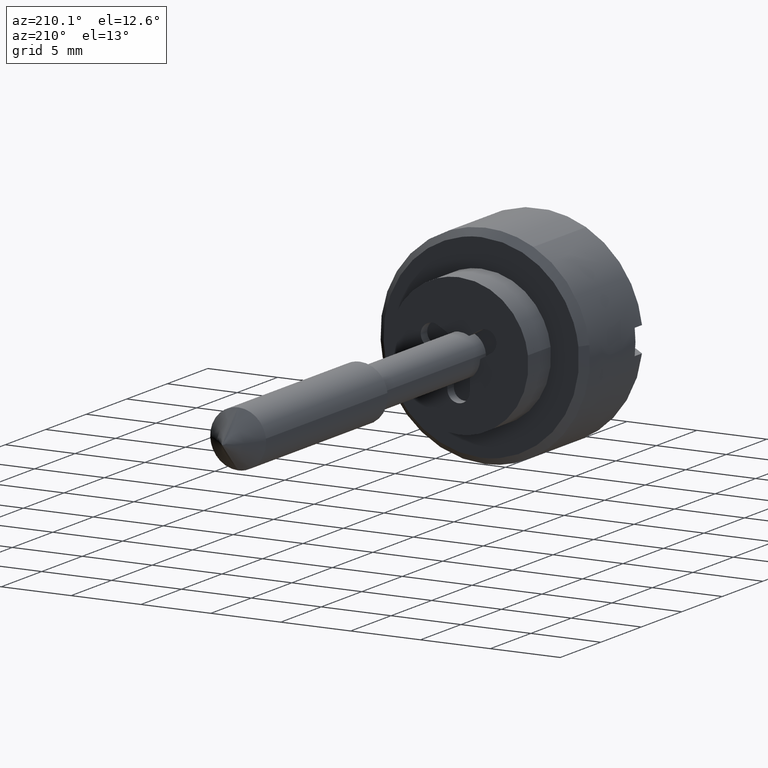
[diagram: clean part render]
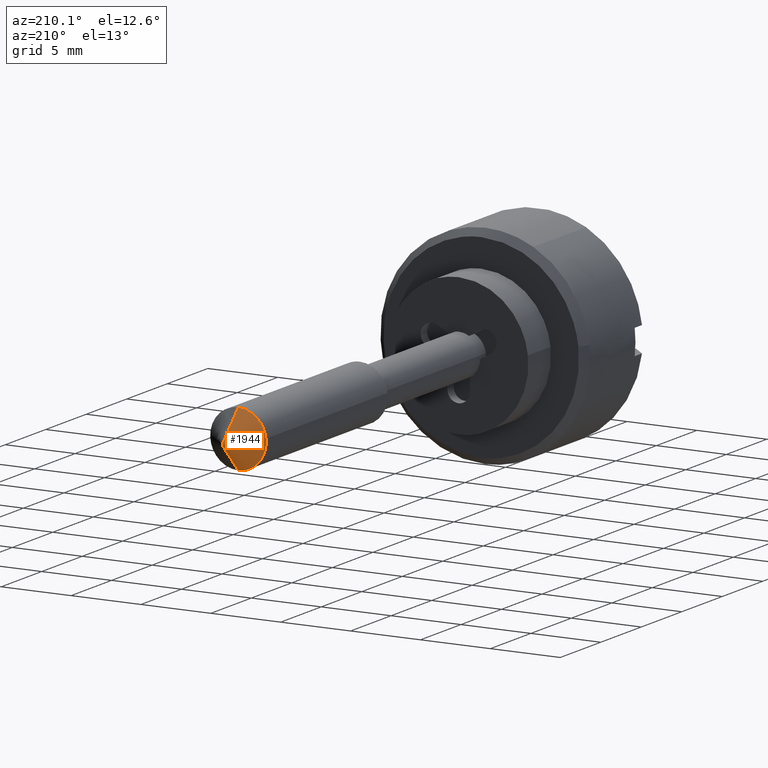
[diagram: same view with one face highlighted and labeled with its STEP entity id]
A machine part, auxiliary view. The second image highlights one B-rep face of the part: STEP entity #1944.
In plain terms, the highlighted face is a freeform B-spline surface patch.
Its self-contained STEP definition (entity closure, byte-faithful):
#859=CARTESIAN_POINT('',(37.999899999999997,1.986019052726245,0.236068469322671));
#860=VERTEX_POINT('',#859);
#861=CARTESIAN_POINT('',(37.999899999999997,0.0,-2.0));
#862=VERTEX_POINT('',#861);
#863=CARTESIAN_POINT('',(37.999900000000004,1.986019052726245,0.236068469322671));
#864=CARTESIAN_POINT('',(37.999900000000004,2.000000000000000,0.118448239313071));
#865=CARTESIAN_POINT('',(37.999899999999997,2.0,0.0));
#866=CARTESIAN_POINT('',(37.999900000000004,2.000000000000000,-2.000000000000000));
#867=CARTESIAN_POINT('',(37.999899999999997,0.0,-2.0));
#875=(BOUNDED_CURVE()B_SPLINE_CURVE(2,(#863,#864,#865,#866,#867),.UNSPECIFIED.,.F.,.U.)B_SPLINE_CURVE_WITH_KNOTS((3,2,3),(0.459124947028173,0.500000000000000,1.0),.UNSPECIFIED.)CURVE()GEOMETRIC_REPRESENTATION_ITEM()RATIONAL_B_SPLINE_CURVE((0.956026754184832,0.976055948331822,1.0,0.707106781186548,1.0))REPRESENTATION_ITEM(''));
#876=EDGE_CURVE('',#860,#862,#875,.T.);
#958=CARTESIAN_POINT('',(37.999899999999997,0.0,2.0));
#959=VERTEX_POINT('',#958);
#960=CARTESIAN_POINT('',(37.999899999999997,0.0,2.0));
#961=CARTESIAN_POINT('',(37.999900000000011,1.776349051886243,2.0));
#962=CARTESIAN_POINT('',(37.999900000000004,1.986019052726245,0.236068469322671));
#970=(BOUNDED_CURVE()B_SPLINE_CURVE(2,(#960,#961,#962),.UNSPECIFIED.,.F.,.U.)B_SPLINE_CURVE_WITH_KNOTS((3,3),(0.0,0.459124947028172),.UNSPECIFIED.)CURVE()GEOMETRIC_REPRESENTATION_ITEM()RATIONAL_B_SPLINE_CURVE((1.0,0.731050832854726,0.956026754184832))REPRESENTATION_ITEM(''));
#971=EDGE_CURVE('',#959,#860,#970,.T.);
#1815=CARTESIAN_POINT('',(39.999899999999997,0.0,0.0));
#1816=VERTEX_POINT('',#1815);
#1817=CARTESIAN_POINT('',(39.999899999999997,0.0,0.0));
#1818=CARTESIAN_POINT('',(37.999899999999997,0.0,2.0));
#1819=QUASI_UNIFORM_CURVE('',1,(#1817,#1818),.UNSPECIFIED.,.F.,.U.);
#1820=EDGE_CURVE('',#1816,#959,#1819,.T.);
#1824=CARTESIAN_POINT('',(39.999899999999997,0.0,0.0));
#1825=CARTESIAN_POINT('',(37.999899999999997,0.0,-2.0));
#1826=QUASI_UNIFORM_CURVE('',1,(#1824,#1825),.UNSPECIFIED.,.F.,.U.);
#1827=EDGE_CURVE('',#1816,#862,#1826,.T.);
#1920=CARTESIAN_POINT('',(39.999899999999997,0.0,0.0));
#1921=CARTESIAN_POINT('',(37.948649999999986,-0.053695465216528,-2.050547087856117));
#1922=CARTESIAN_POINT('',(39.999900000000011,0.0,0.0));
#1923=CARTESIAN_POINT('',(37.948650000000001,2.107130301919004,-2.107130301919010));
#1924=CARTESIAN_POINT('',(39.999899999999997,0.0,0.0));
#1925=CARTESIAN_POINT('',(37.948649999999986,2.050547087856118,0.053695465216522));
#1926=CARTESIAN_POINT('',(39.999900000000011,0.0,0.0));
#1927=CARTESIAN_POINT('',(37.948650000000001,1.993963873793232,2.214521232352053));
#1928=CARTESIAN_POINT('',(39.999899999999997,0.0,0.0));
#1929=CARTESIAN_POINT('',(37.948649999999986,-0.160939220111739,2.044926680820085));
#1937=(BOUNDED_SURFACE()B_SPLINE_SURFACE(1,2,((#1920,#1922,#1924,#1926,#1928),(#1921,#1923,#1925,#1927,#1929)),.UNSPECIFIED.,.F.,.F.,.U.)B_SPLINE_SURFACE_WITH_KNOTS((2,2),(3,2,3),(0.0,1.0),(0.0,1.0,2.0),.UNSPECIFIED.)GEOMETRIC_REPRESENTATION_ITEM()RATIONAL_B_SPLINE_SURFACE(((1.0,0.688354575693754,1.0,0.688354575693754,1.0),(1.0,0.688354575693754,1.0,0.688354575693754,1.0)))REPRESENTATION_ITEM('')SURFACE());
#1938=ORIENTED_EDGE('',*,*,#1827,.T.);
#1939=ORIENTED_EDGE('',*,*,#876,.F.);
#1940=ORIENTED_EDGE('',*,*,#971,.F.);
#1941=ORIENTED_EDGE('',*,*,#1820,.F.);
#1942=EDGE_LOOP('',(#1938,#1939,#1940,#1941));
#1943=FACE_OUTER_BOUND('',#1942,.T.);
#1944=ADVANCED_FACE('',(#1943),#1937,.T.);